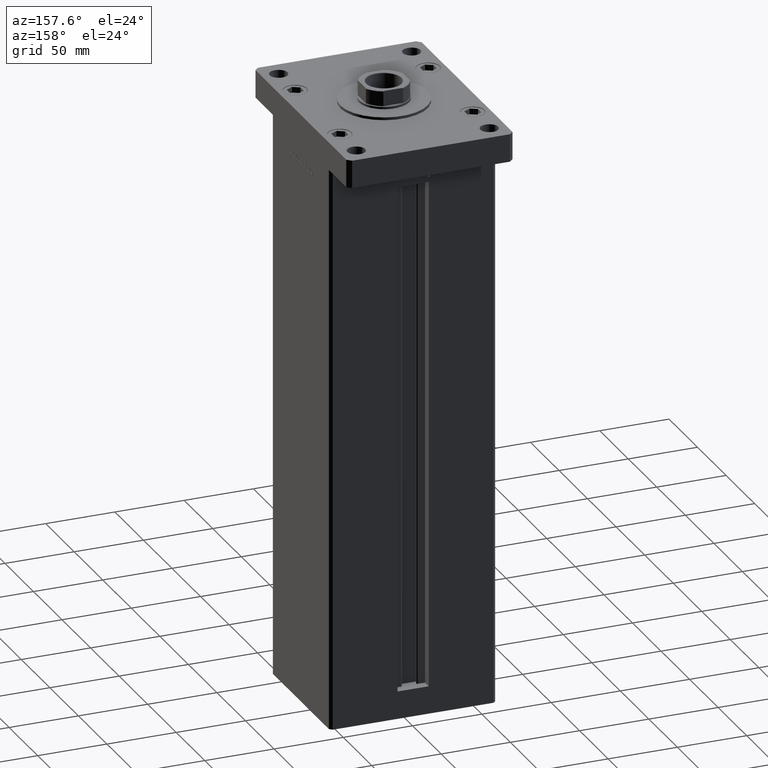
[diagram: clean part render]
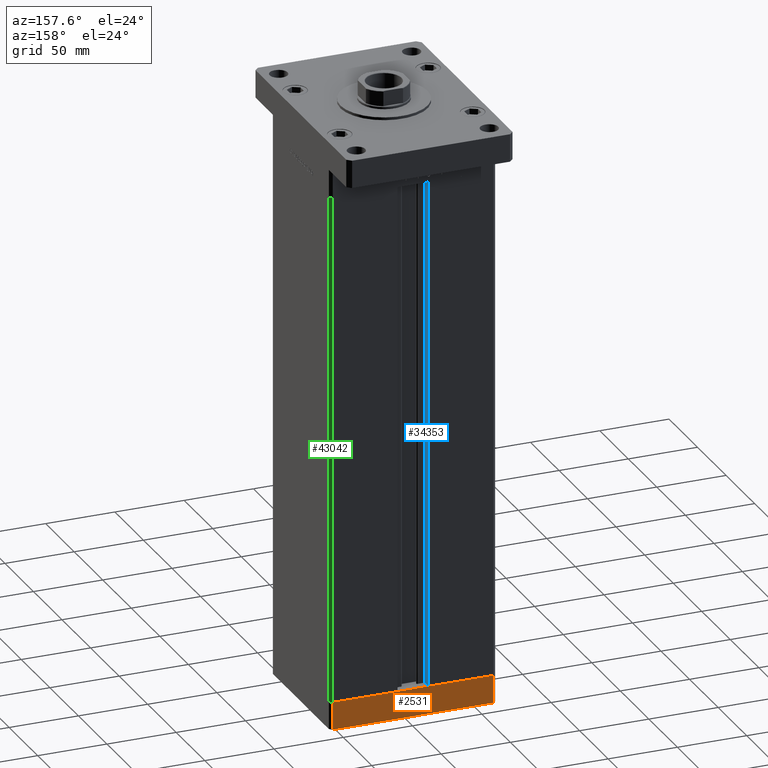
[diagram: same view with three faces highlighted in distinct colors, each labeled with its STEP entity id]
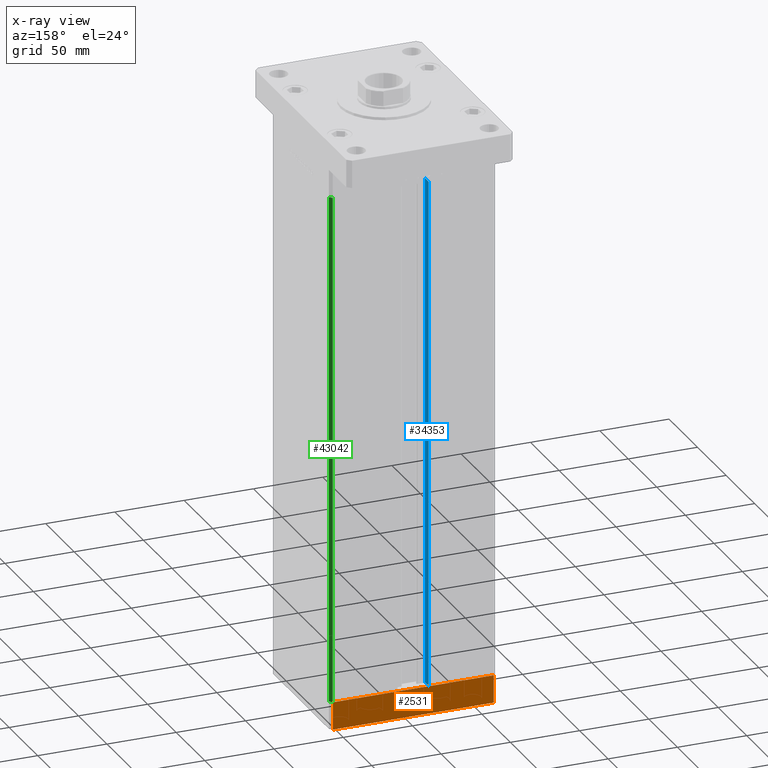
[diagram: x-ray of the same camera — body ghosted, the three highlighted faces saturated]
A machine part, auxiliary view with three faces highlighted in distinct colors.
The next image is the same camera in x-ray (body ghosted, the three faces saturated) — at least one of them is partly hidden behind the body in this view.
Their STEP definitions:

[orange] entity #2531 — the highlighted planar face has unit normal (0, 1, 0).
#473 = CARTESIAN_POINT ( 'NONE',  ( 57.99999999999993605, 51.00000000000000711, -20.00000000000000000 ) ) ;
#1208 = VECTOR ( 'NONE', #37627, 1000.000000000000000 ) ;
#1339 = ORIENTED_EDGE ( 'NONE', *, *, #5959, .T. ) ;
#1868 = CARTESIAN_POINT ( 'NONE',  ( 57.99999999999993605, 51.00000000000000711, 0.000000000000000000 ) ) ;
#2531 = ADVANCED_FACE ( 'NONE', ( #25978 ), #45871, .T. ) ;
#3404 = VERTEX_POINT ( 'NONE', #10826 ) ;
#5329 = DIRECTION ( 'NONE',  ( -1.000000000000000000, -2.392722035830079958E-16, 0.000000000000000000 ) ) ;
#5959 = EDGE_CURVE ( 'NONE', #50787, #3404, #47817, .T. ) ;
#10545 = DIRECTION ( 'NONE',  ( -1.000000000000000000, -2.392722035830079958E-16, 0.000000000000000000 ) ) ;
#10826 = CARTESIAN_POINT ( 'NONE',  ( -57.99999999999999289, 50.99999999999997868, -20.00000000000000000 ) ) ;
#12068 = LINE ( 'NONE', #50149, #1208 ) ;
#15059 = CARTESIAN_POINT ( 'NONE',  ( -57.99999999999999289, 50.99999999999997868, -20.00000000000000000 ) ) ;
#15585 = ORIENTED_EDGE ( 'NONE', *, *, #46372, .F. ) ;
#17610 = CARTESIAN_POINT ( 'NONE',  ( -57.99999999999999289, 50.99999999999997868, 0.000000000000000000 ) ) ;
#19068 = VECTOR ( 'NONE', #10545, 1000.000000000000000 ) ;
#19247 = CARTESIAN_POINT ( 'NONE',  ( 57.99999999999993605, 51.00000000000000711, -20.00000000000000000 ) ) ;
#20920 = ORIENTED_EDGE ( 'NONE', *, *, #41805, .F. ) ;
#23337 = AXIS2_PLACEMENT_3D ( 'NONE', #42583, #37429, #5329 ) ;
#23395 = VERTEX_POINT ( 'NONE', #1868 ) ;
#25978 = FACE_OUTER_BOUND ( 'NONE', #38101, .T. ) ;
#28364 = DIRECTION ( 'NONE',  ( 0.000000000000000000, 0.000000000000000000, 1.000000000000000000 ) ) ;
#30717 = LINE ( 'NONE', #47865, #31480 ) ;
#31480 = VECTOR ( 'NONE', #44336, 1000.000000000000000 ) ;
#37429 = DIRECTION ( 'NONE',  ( -2.392722035830079958E-16, 1.000000000000000000, 0.000000000000000000 ) ) ;
#37627 = DIRECTION ( 'NONE',  ( 0.000000000000000000, 0.000000000000000000, 1.000000000000000000 ) ) ;
#38101 = EDGE_LOOP ( 'NONE', ( #20920, #15585, #1339, #49327 ) ) ;
#40088 = LINE ( 'NONE', #15059, #43040 ) ;
#41805 = EDGE_CURVE ( 'NONE', #23395, #44789, #30717, .T. ) ;
#42583 = CARTESIAN_POINT ( 'NONE',  ( 57.99999999999993605, 51.00000000000000711, -20.00000000000000000 ) ) ;
#43040 = VECTOR ( 'NONE', #28364, 1000.000000000000000 ) ;
#44336 = DIRECTION ( 'NONE',  ( -1.000000000000000000, -2.392722035830079958E-16, 0.000000000000000000 ) ) ;
#44789 = VERTEX_POINT ( 'NONE', #17610 ) ;
#45871 = PLANE ( 'NONE',  #23337 ) ;
#46372 = EDGE_CURVE ( 'NONE', #50787, #23395, #12068, .T. ) ;
#47817 = LINE ( 'NONE', #19247, #19068 ) ;
#47865 = CARTESIAN_POINT ( 'NONE',  ( 57.99999999999993605, 51.00000000000000711, 0.000000000000000000 ) ) ;
#49327 = ORIENTED_EDGE ( 'NONE', *, *, #51314, .T. ) ;
#50149 = CARTESIAN_POINT ( 'NONE',  ( 57.99999999999993605, 51.00000000000000711, -20.00000000000000000 ) ) ;
#50787 = VERTEX_POINT ( 'NONE', #473 ) ;
#51314 = EDGE_CURVE ( 'NONE', #3404, #44789, #40088, .T. ) ;

[blue] entity #34353 — the highlighted planar face has unit normal (-1, 0, 0).
#1069 = DIRECTION ( 'NONE',  ( -0.000000000000000000, -0.000000000000000000, 1.000000000000000000 ) ) ;
#1625 = ORIENTED_EDGE ( 'NONE', *, *, #30551, .T. ) ;
#4890 = LINE ( 'NONE', #17381, #51523 ) ;
#5087 = DIRECTION ( 'NONE',  ( -0.000000000000000000, -0.000000000000000000, 1.000000000000000000 ) ) ;
#5511 = LINE ( 'NONE', #41960, #20891 ) ;
#6304 = PLANE ( 'NONE',  #28620 ) ;
#9479 = ORIENTED_EDGE ( 'NONE', *, *, #15833, .F. ) ;
#14995 = DIRECTION ( 'NONE',  ( 0.000000000000000000, 0.000000000000000000, 1.000000000000000000 ) ) ;
#15777 = ORIENTED_EDGE ( 'NONE', *, *, #48710, .F. ) ;
#15814 = VERTEX_POINT ( 'NONE', #16214 ) ;
#15833 = EDGE_CURVE ( 'NONE', #15814, #49606, #24642, .T. ) ;
#16037 = VERTEX_POINT ( 'NONE', #24844 ) ;
#16214 = CARTESIAN_POINT ( 'NONE',  ( -11.25000000000000178, 51.00000000000000000, 0.000000000000000000 ) ) ;
#17381 = CARTESIAN_POINT ( 'NONE',  ( -11.25000000000000178, 44.50000000000000000, 0.000000000000000000 ) ) ;
#18534 = CARTESIAN_POINT ( 'NONE',  ( -11.25000000000000178, 44.50000000000000000, 0.000000000000000000 ) ) ;
#19119 = VECTOR ( 'NONE', #5087, 1000.000000000000000 ) ;
#20558 = CARTESIAN_POINT ( 'NONE',  ( -11.25000000000000178, 44.50000000000000000, 0.000000000000000000 ) ) ;
#20891 = VECTOR ( 'NONE', #22078, 1000.000000000000000 ) ;
#21803 = CARTESIAN_POINT ( 'NONE',  ( -11.25000000000000178, 44.50000000000000000, 0.000000000000000000 ) ) ;
#22078 = DIRECTION ( 'NONE',  ( 0.000000000000000000, 1.000000000000000000, 0.000000000000000000 ) ) ;
#23889 = ORIENTED_EDGE ( 'NONE', *, *, #37982, .F. ) ;
#24642 = LINE ( 'NONE', #20558, #47068 ) ;
#24844 = CARTESIAN_POINT ( 'NONE',  ( -11.25000000000000178, 51.00000000000000000, 368.5000000000000000 ) ) ;
#25043 = EDGE_LOOP ( 'NONE', ( #15777, #9479, #1625, #23889 ) ) ;
#25448 = DIRECTION ( 'NONE',  ( -0.000000000000000000, -1.000000000000000000, -0.000000000000000000 ) ) ;
#28579 = CARTESIAN_POINT ( 'NONE',  ( -11.25000000000000178, 44.50000000000000000, 368.5000000000000000 ) ) ;
#28620 = AXIS2_PLACEMENT_3D ( 'NONE', #18534, #51725, #14995 ) ;
#30551 = EDGE_CURVE ( 'NONE', #15814, #16037, #46966, .T. ) ;
#33901 = CARTESIAN_POINT ( 'NONE',  ( -11.25000000000000178, 51.00000000000000000, 0.000000000000000000 ) ) ;
#34353 = ADVANCED_FACE ( 'NONE', ( #43293 ), #6304, .F. ) ;
#35216 = VERTEX_POINT ( 'NONE', #28579 ) ;
#37982 = EDGE_CURVE ( 'NONE', #35216, #16037, #5511, .T. ) ;
#41960 = CARTESIAN_POINT ( 'NONE',  ( -11.25000000000000178, 0.000000000000000000, 368.5000000000000000 ) ) ;
#43293 = FACE_OUTER_BOUND ( 'NONE', #25043, .T. ) ;
#46966 = LINE ( 'NONE', #33901, #19119 ) ;
#47068 = VECTOR ( 'NONE', #25448, 1000.000000000000000 ) ;
#48710 = EDGE_CURVE ( 'NONE', #49606, #35216, #4890, .T. ) ;
#49606 = VERTEX_POINT ( 'NONE', #21803 ) ;
#51523 = VECTOR ( 'NONE', #1069, 1000.000000000000000 ) ;
#51725 = DIRECTION ( 'NONE',  ( -1.000000000000000000, 0.000000000000000000, 0.000000000000000000 ) ) ;

[green] entity #43042 — the highlighted planar face has unit normal (0.7071, 0.7071, 0).
#323 = LINE ( 'NONE', #41925, #36730 ) ;
#2951 = VERTEX_POINT ( 'NONE', #34888 ) ;
#3256 = VERTEX_POINT ( 'NONE', #47013 ) ;
#3585 = DIRECTION ( 'NONE',  ( -0.7071067811865500152, 0.7071067811865451302, 0.000000000000000000 ) ) ;
#4471 = VECTOR ( 'NONE', #48807, 1000.000000000000114 ) ;
#6864 = FACE_OUTER_BOUND ( 'NONE', #48169, .T. ) ;
#9562 = CARTESIAN_POINT ( 'NONE',  ( 57.99999999999999289, 51.00000000000000711, 0.000000000000000000 ) ) ;
#10434 = ORIENTED_EDGE ( 'NONE', *, *, #25842, .F. ) ;
#12943 = VERTEX_POINT ( 'NONE', #31556 ) ;
#22951 = DIRECTION ( 'NONE',  ( -0.000000000000000000, -0.000000000000000000, -1.000000000000000000 ) ) ;
#23220 = CARTESIAN_POINT ( 'NONE',  ( 57.99999999999999289, 51.00000000000000711, 0.000000000000000000 ) ) ;
#23442 = CARTESIAN_POINT ( 'NONE',  ( 57.99999999999999289, 51.00000000000000711, 368.5000000000000000 ) ) ;
#25842 = EDGE_CURVE ( 'NONE', #3256, #26251, #35458, .T. ) ;
#26251 = VERTEX_POINT ( 'NONE', #9562 ) ;
#27118 = CARTESIAN_POINT ( 'NONE',  ( 60.00000000000001421, 49.00000000000000000, 368.5000000000000000 ) ) ;
#30578 = AXIS2_PLACEMENT_3D ( 'NONE', #23442, #40050, #3585 ) ;
#31544 = EDGE_CURVE ( 'NONE', #2951, #12943, #44538, .T. ) ;
#31556 = CARTESIAN_POINT ( 'NONE',  ( 60.00000000000001421, 49.00000000000000000, 0.000000000000000000 ) ) ;
#34754 = VECTOR ( 'NONE', #47529, 1000.000000000000000 ) ;
#34888 = CARTESIAN_POINT ( 'NONE',  ( 60.00000000000001421, 49.00000000000000000, 368.5000000000000000 ) ) ;
#35458 = LINE ( 'NONE', #44455, #41521 ) ;
#35739 = LINE ( 'NONE', #23220, #4471 ) ;
#36246 = ORIENTED_EDGE ( 'NONE', *, *, #31544, .T. ) ;
#36730 = VECTOR ( 'NONE', #42457, 1000.000000000000114 ) ;
#39544 = EDGE_CURVE ( 'NONE', #26251, #12943, #35739, .T. ) ;
#40050 = DIRECTION ( 'NONE',  ( 0.7071067811865451302, 0.7071067811865500152, -0.000000000000000000 ) ) ;
#41521 = VECTOR ( 'NONE', #22951, 1000.000000000000000 ) ;
#41925 = CARTESIAN_POINT ( 'NONE',  ( 57.99999999999999289, 51.00000000000000711, 368.5000000000000000 ) ) ;
#42457 = DIRECTION ( 'NONE',  ( 0.7071067811865500152, -0.7071067811865451302, 0.000000000000000000 ) ) ;
#43042 = ADVANCED_FACE ( 'NONE', ( #6864 ), #48215, .T. ) ;
#43958 = EDGE_CURVE ( 'NONE', #3256, #2951, #323, .T. ) ;
#44455 = CARTESIAN_POINT ( 'NONE',  ( 57.99999999999999289, 51.00000000000000711, 368.5000000000000000 ) ) ;
#44538 = LINE ( 'NONE', #27118, #34754 ) ;
#47013 = CARTESIAN_POINT ( 'NONE',  ( 57.99999999999999289, 51.00000000000000711, 368.5000000000000000 ) ) ;
#47529 = DIRECTION ( 'NONE',  ( -0.000000000000000000, -0.000000000000000000, -1.000000000000000000 ) ) ;
#48169 = EDGE_LOOP ( 'NONE', ( #48463, #10434, #48524, #36246 ) ) ;
#48215 = PLANE ( 'NONE',  #30578 ) ;
#48463 = ORIENTED_EDGE ( 'NONE', *, *, #39544, .F. ) ;
#48524 = ORIENTED_EDGE ( 'NONE', *, *, #43958, .T. ) ;
#48807 = DIRECTION ( 'NONE',  ( 0.7071067811865500152, -0.7071067811865451302, 0.000000000000000000 ) ) ;